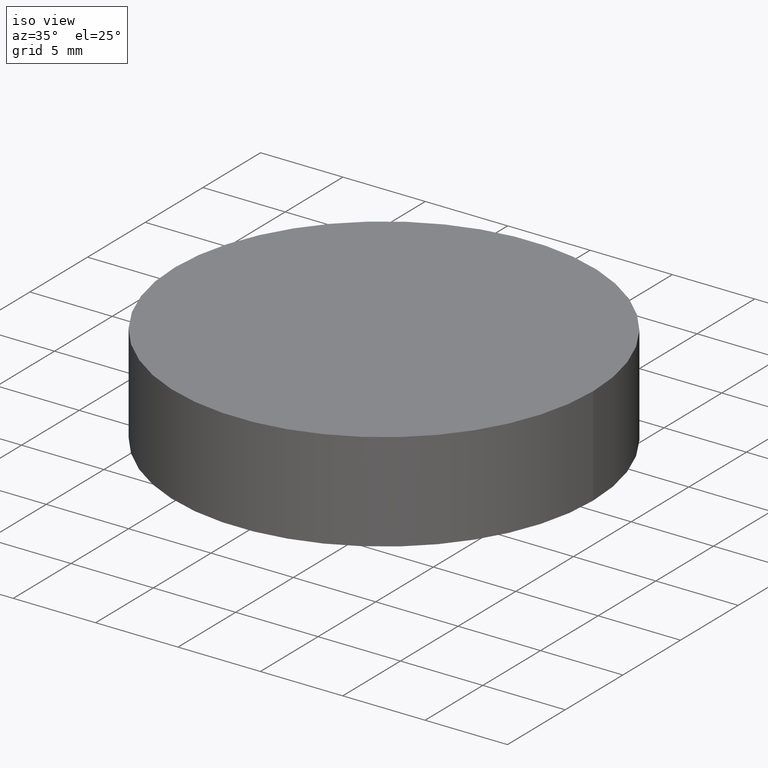
[diagram: clean part render]
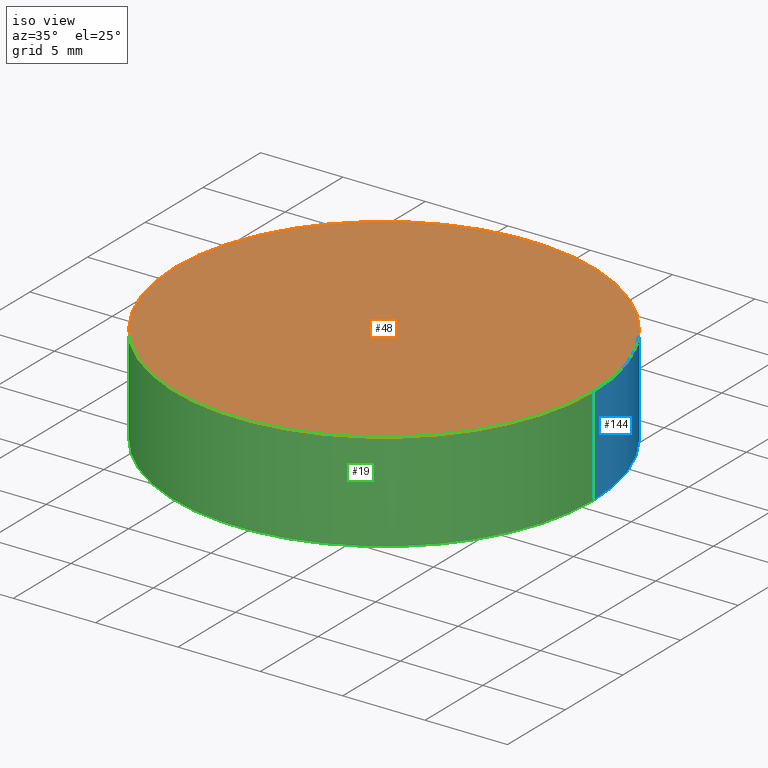
[diagram: same view with three faces highlighted in distinct colors, each labeled with its STEP entity id]
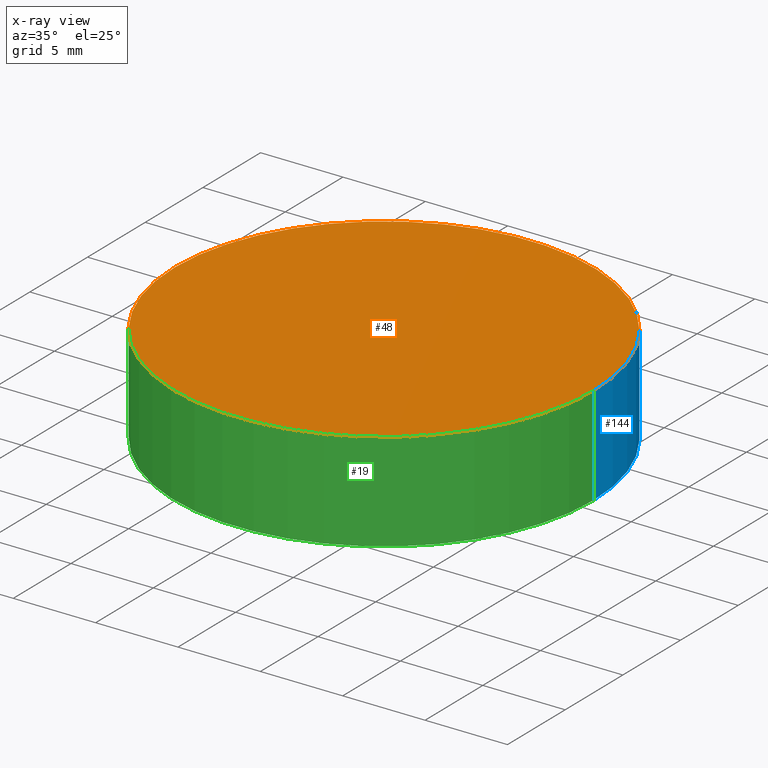
[diagram: x-ray of the same camera — body ghosted, the three highlighted faces saturated]
A machine part, iso view with three faces highlighted in distinct colors.
The next image is the same camera in x-ray (body ghosted, the three faces saturated) — at least one of them is partly hidden behind the body in this view.
Their STEP definitions:

[orange] entity #48 — the highlighted planar face has unit normal (0, 0, 1).
#11 = DIRECTION ( 'NONE',  ( 0.0000000000000000000, 0.0000000000000000000, 1.000000000000000000 ) ) ;
#25 = CARTESIAN_POINT ( 'NONE',  ( 0.0000000000000000000, 0.0000000000000000000, 6.000000000000000000 ) ) ;
#45 = EDGE_CURVE ( 'NONE', #51, #216, #150, .T. ) ;
#48 = ADVANCED_FACE ( 'NONE', ( #186 ), #175, .T. ) ;
#51 = VERTEX_POINT ( 'NONE', #112 ) ;
#56 = CARTESIAN_POINT ( 'NONE',  ( 0.0000000000000000000, 0.0000000000000000000, 6.000000000000000000 ) ) ;
#58 = ORIENTED_EDGE ( 'NONE', *, *, #105, .T. ) ;
#85 = DIRECTION ( 'NONE',  ( 0.0000000000000000000, 0.0000000000000000000, 1.000000000000000000 ) ) ;
#105 = EDGE_CURVE ( 'NONE', #216, #51, #148, .T. ) ;
#111 = DIRECTION ( 'NONE',  ( 0.0000000000000000000, 0.0000000000000000000, 1.000000000000000000 ) ) ;
#112 = CARTESIAN_POINT ( 'NONE',  ( 12.69999999999999900, 1.555301434917138400E-015, 6.000000000000000000 ) ) ;
#117 = AXIS2_PLACEMENT_3D ( 'NONE', #157, #11, #221 ) ;
#148 = CIRCLE ( 'NONE', #117, 12.69999999999999900 ) ;
#150 = CIRCLE ( 'NONE', #200, 12.69999999999999900 ) ;
#152 = DIRECTION ( 'NONE',  ( 1.000000000000000000, 0.0000000000000000000, 0.0000000000000000000 ) ) ;
#157 = CARTESIAN_POINT ( 'NONE',  ( 0.0000000000000000000, 0.0000000000000000000, 6.000000000000000000 ) ) ;
#163 = AXIS2_PLACEMENT_3D ( 'NONE', #56, #85, #236 ) ;
#175 = PLANE ( 'NONE',  #163 ) ;
#186 = FACE_OUTER_BOUND ( 'NONE', #193, .T. ) ;
#193 = EDGE_LOOP ( 'NONE', ( #58, #214 ) ) ;
#197 = CARTESIAN_POINT ( 'NONE',  ( -12.69999999999999900, 0.0000000000000000000, 6.000000000000000000 ) ) ;
#200 = AXIS2_PLACEMENT_3D ( 'NONE', #25, #111, #152 ) ;
#214 = ORIENTED_EDGE ( 'NONE', *, *, #45, .T. ) ;
#216 = VERTEX_POINT ( 'NONE', #197 ) ;
#221 = DIRECTION ( 'NONE',  ( 1.000000000000000000, 0.0000000000000000000, 0.0000000000000000000 ) ) ;
#236 = DIRECTION ( 'NONE',  ( 1.000000000000000000, 0.0000000000000000000, -0.0000000000000000000 ) ) ;

[blue] entity #144 — the highlighted cylindrical surface (partial cylindrical patch) has radius 12.7 mm, axis along (-0, -0, -1).
#5 = CIRCLE ( 'NONE', #130, 12.69999999999999900 ) ;
#10 = ORIENTED_EDGE ( 'NONE', *, *, #94, .T. ) ;
#14 = VECTOR ( 'NONE', #218, 1000.000000000000000 ) ;
#21 = FACE_OUTER_BOUND ( 'NONE', #208, .T. ) ;
#25 = CARTESIAN_POINT ( 'NONE',  ( 0.0000000000000000000, 0.0000000000000000000, 6.000000000000000000 ) ) ;
#26 = VECTOR ( 'NONE', #76, 1000.000000000000000 ) ;
#37 = AXIS2_PLACEMENT_3D ( 'NONE', #72, #65, #243 ) ;
#45 = EDGE_CURVE ( 'NONE', #51, #216, #150, .T. ) ;
#51 = VERTEX_POINT ( 'NONE', #112 ) ;
#57 = LINE ( 'NONE', #159, #26 ) ;
#65 = DIRECTION ( 'NONE',  ( -0.0000000000000000000, -0.0000000000000000000, -1.000000000000000000 ) ) ;
#71 = ORIENTED_EDGE ( 'NONE', *, *, #45, .F. ) ;
#72 = CARTESIAN_POINT ( 'NONE',  ( 0.0000000000000000000, 0.0000000000000000000, 6.000000000000000000 ) ) ;
#73 = EDGE_CURVE ( 'NONE', #51, #228, #57, .T. ) ;
#74 = CARTESIAN_POINT ( 'NONE',  ( 0.0000000000000000000, 0.0000000000000000000, 0.0000000000000000000 ) ) ;
#76 = DIRECTION ( 'NONE',  ( -0.0000000000000000000, -0.0000000000000000000, -1.000000000000000000 ) ) ;
#84 = ORIENTED_EDGE ( 'NONE', *, *, #73, .T. ) ;
#89 = CARTESIAN_POINT ( 'NONE',  ( 12.69999999999999900, 1.555301434917138400E-015, 0.0000000000000000000 ) ) ;
#90 = DIRECTION ( 'NONE',  ( 0.0000000000000000000, 0.0000000000000000000, 1.000000000000000000 ) ) ;
#94 = EDGE_CURVE ( 'NONE', #228, #253, #5, .T. ) ;
#102 = EDGE_CURVE ( 'NONE', #216, #253, #238, .T. ) ;
#107 = ORIENTED_EDGE ( 'NONE', *, *, #102, .F. ) ;
#111 = DIRECTION ( 'NONE',  ( 0.0000000000000000000, 0.0000000000000000000, 1.000000000000000000 ) ) ;
#112 = CARTESIAN_POINT ( 'NONE',  ( 12.69999999999999900, 1.555301434917138400E-015, 6.000000000000000000 ) ) ;
#130 = AXIS2_PLACEMENT_3D ( 'NONE', #74, #90, #182 ) ;
#144 = ADVANCED_FACE ( 'NONE', ( #21 ), #203, .T. ) ;
#150 = CIRCLE ( 'NONE', #200, 12.69999999999999900 ) ;
#152 = DIRECTION ( 'NONE',  ( 1.000000000000000000, 0.0000000000000000000, 0.0000000000000000000 ) ) ;
#155 = CARTESIAN_POINT ( 'NONE',  ( -12.69999999999999900, 0.0000000000000000000, 6.000000000000000000 ) ) ;
#159 = CARTESIAN_POINT ( 'NONE',  ( 12.69999999999999900, 1.555301434917138400E-015, 6.000000000000000000 ) ) ;
#182 = DIRECTION ( 'NONE',  ( 1.000000000000000000, 0.0000000000000000000, 0.0000000000000000000 ) ) ;
#197 = CARTESIAN_POINT ( 'NONE',  ( -12.69999999999999900, 0.0000000000000000000, 6.000000000000000000 ) ) ;
#200 = AXIS2_PLACEMENT_3D ( 'NONE', #25, #111, #152 ) ;
#201 = CARTESIAN_POINT ( 'NONE',  ( -12.69999999999999900, 0.0000000000000000000, 0.0000000000000000000 ) ) ;
#203 = CYLINDRICAL_SURFACE ( 'NONE', #37, 12.69999999999999900 ) ;
#208 = EDGE_LOOP ( 'NONE', ( #71, #84, #10, #107 ) ) ;
#216 = VERTEX_POINT ( 'NONE', #197 ) ;
#218 = DIRECTION ( 'NONE',  ( -0.0000000000000000000, -0.0000000000000000000, -1.000000000000000000 ) ) ;
#228 = VERTEX_POINT ( 'NONE', #89 ) ;
#238 = LINE ( 'NONE', #155, #14 ) ;
#243 = DIRECTION ( 'NONE',  ( -1.000000000000000000, 0.0000000000000000000, 0.0000000000000000000 ) ) ;
#253 = VERTEX_POINT ( 'NONE', #201 ) ;

[green] entity #19 — the highlighted cylindrical surface (partial cylindrical patch) has radius 12.7 mm, axis along (-0, -0, -1).
#3 = DIRECTION ( 'NONE',  ( 0.0000000000000000000, 0.0000000000000000000, 1.000000000000000000 ) ) ;
#7 = CARTESIAN_POINT ( 'NONE',  ( 0.0000000000000000000, 0.0000000000000000000, 6.000000000000000000 ) ) ;
#8 = EDGE_CURVE ( 'NONE', #253, #228, #176, .T. ) ;
#11 = DIRECTION ( 'NONE',  ( 0.0000000000000000000, 0.0000000000000000000, 1.000000000000000000 ) ) ;
#14 = VECTOR ( 'NONE', #218, 1000.000000000000000 ) ;
#19 = ADVANCED_FACE ( 'NONE', ( #210 ), #34, .T. ) ;
#26 = VECTOR ( 'NONE', #76, 1000.000000000000000 ) ;
#34 = CYLINDRICAL_SURFACE ( 'NONE', #212, 12.69999999999999900 ) ;
#39 = ORIENTED_EDGE ( 'NONE', *, *, #102, .T. ) ;
#51 = VERTEX_POINT ( 'NONE', #112 ) ;
#57 = LINE ( 'NONE', #159, #26 ) ;
#73 = EDGE_CURVE ( 'NONE', #51, #228, #57, .T. ) ;
#76 = DIRECTION ( 'NONE',  ( -0.0000000000000000000, -0.0000000000000000000, -1.000000000000000000 ) ) ;
#79 = ORIENTED_EDGE ( 'NONE', *, *, #73, .F. ) ;
#88 = ORIENTED_EDGE ( 'NONE', *, *, #8, .T. ) ;
#89 = CARTESIAN_POINT ( 'NONE',  ( 12.69999999999999900, 1.555301434917138400E-015, 0.0000000000000000000 ) ) ;
#102 = EDGE_CURVE ( 'NONE', #216, #253, #238, .T. ) ;
#105 = EDGE_CURVE ( 'NONE', #216, #51, #148, .T. ) ;
#112 = CARTESIAN_POINT ( 'NONE',  ( 12.69999999999999900, 1.555301434917138400E-015, 6.000000000000000000 ) ) ;
#117 = AXIS2_PLACEMENT_3D ( 'NONE', #157, #11, #221 ) ;
#122 = AXIS2_PLACEMENT_3D ( 'NONE', #234, #3, #128 ) ;
#125 = EDGE_LOOP ( 'NONE', ( #79, #139, #39, #88 ) ) ;
#128 = DIRECTION ( 'NONE',  ( 1.000000000000000000, 0.0000000000000000000, 0.0000000000000000000 ) ) ;
#139 = ORIENTED_EDGE ( 'NONE', *, *, #105, .F. ) ;
#148 = CIRCLE ( 'NONE', #117, 12.69999999999999900 ) ;
#155 = CARTESIAN_POINT ( 'NONE',  ( -12.69999999999999900, 0.0000000000000000000, 6.000000000000000000 ) ) ;
#157 = CARTESIAN_POINT ( 'NONE',  ( 0.0000000000000000000, 0.0000000000000000000, 6.000000000000000000 ) ) ;
#159 = CARTESIAN_POINT ( 'NONE',  ( 12.69999999999999900, 1.555301434917138400E-015, 6.000000000000000000 ) ) ;
#176 = CIRCLE ( 'NONE', #122, 12.69999999999999900 ) ;
#197 = CARTESIAN_POINT ( 'NONE',  ( -12.69999999999999900, 0.0000000000000000000, 6.000000000000000000 ) ) ;
#201 = CARTESIAN_POINT ( 'NONE',  ( -12.69999999999999900, 0.0000000000000000000, 0.0000000000000000000 ) ) ;
#210 = FACE_OUTER_BOUND ( 'NONE', #125, .T. ) ;
#212 = AXIS2_PLACEMENT_3D ( 'NONE', #7, #215, #237 ) ;
#215 = DIRECTION ( 'NONE',  ( -0.0000000000000000000, -0.0000000000000000000, -1.000000000000000000 ) ) ;
#216 = VERTEX_POINT ( 'NONE', #197 ) ;
#218 = DIRECTION ( 'NONE',  ( -0.0000000000000000000, -0.0000000000000000000, -1.000000000000000000 ) ) ;
#221 = DIRECTION ( 'NONE',  ( 1.000000000000000000, 0.0000000000000000000, 0.0000000000000000000 ) ) ;
#228 = VERTEX_POINT ( 'NONE', #89 ) ;
#234 = CARTESIAN_POINT ( 'NONE',  ( 0.0000000000000000000, 0.0000000000000000000, 0.0000000000000000000 ) ) ;
#237 = DIRECTION ( 'NONE',  ( -1.000000000000000000, 0.0000000000000000000, 0.0000000000000000000 ) ) ;
#238 = LINE ( 'NONE', #155, #14 ) ;
#253 = VERTEX_POINT ( 'NONE', #201 ) ;